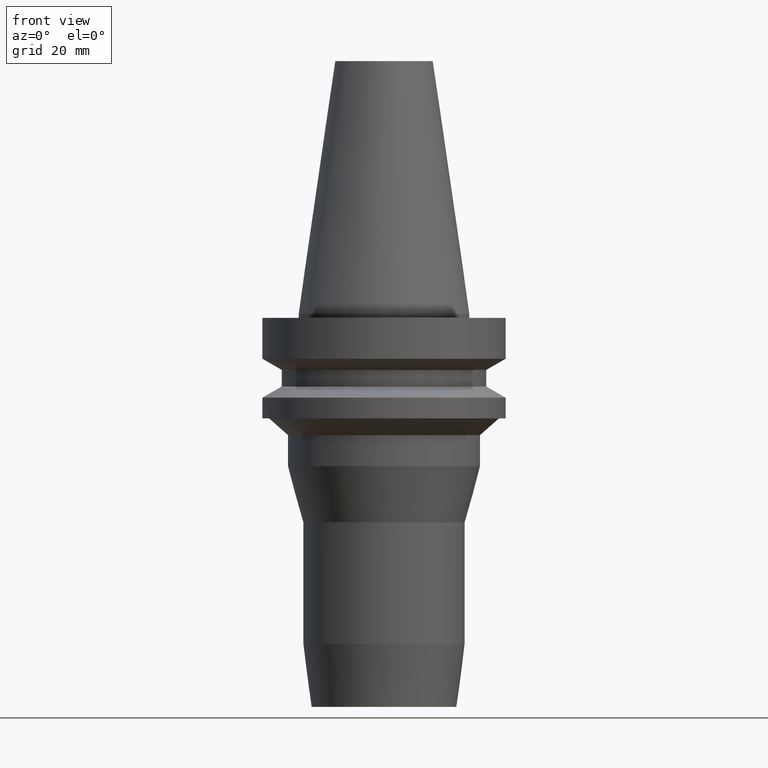
[diagram: clean part render]
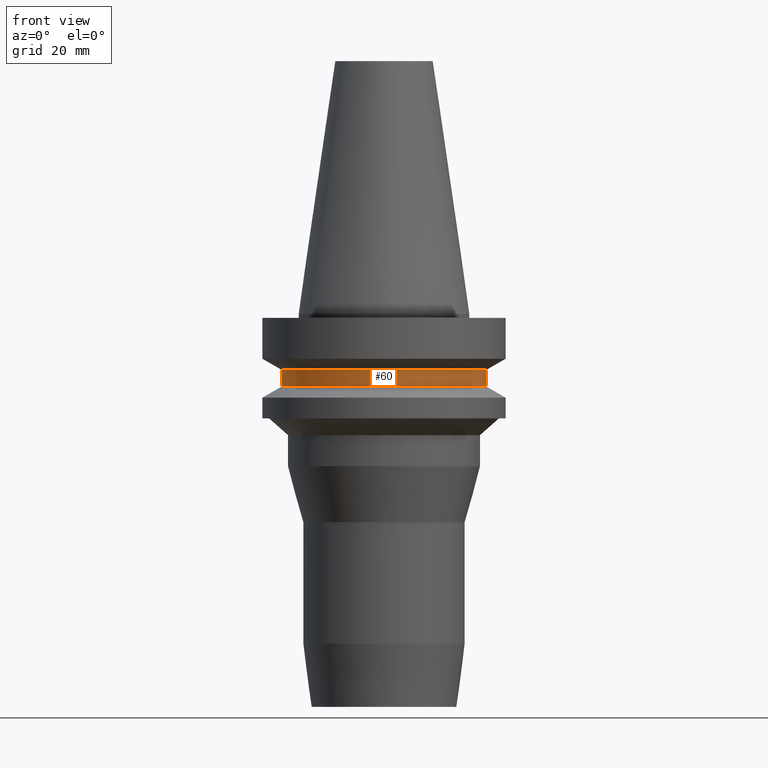
[diagram: same view with one face highlighted and labeled with its STEP entity id]
A machine part, front view. The second image highlights one B-rep face of the part: STEP entity #60.
In plain terms, the highlighted cylindrical surface (bore or boss wall) has radius 26.5 mm, axis along (0, -0, -1).
Its self-contained STEP definition (entity closure, byte-faithful):
#60=ADVANCED_FACE('Unnamed[1]',(#159,#160),#161,.T.);
#62=EDGE_CURVE('Unnamed[1]',#163,#163,#164,.T.);
#117=EDGE_CURVE('Unnamed[1]',#248,#248,#249,.T.);
#159=FACE_BOUND('',#293,.T.);
#160=FACE_BOUND('',#294,.T.);
#161=CYLINDRICAL_SURFACE('',#295,26.4999999999997);
#163=VERTEX_POINT('',#298);
#164=CIRCLE('',#299,26.5);
#248=VERTEX_POINT('',#404);
#249=CIRCLE('',#405,26.4999999999994);
#293=EDGE_LOOP('',(#449));
#294=EDGE_LOOP('',(#450));
#295=AXIS2_PLACEMENT_3D('',#451,#452,#453);
#298=CARTESIAN_POINT('',(1.1479681728942E-015,26.5,-18.7477430013855));
#299=AXIS2_PLACEMENT_3D('',#454,#455,#456);
#404=CARTESIAN_POINT('',(8.8494551369045E-016,26.4999999999995,-14.4522569986152));
#405=AXIS2_PLACEMENT_3D('',#547,#548,#549);
#449=ORIENTED_EDGE('',*,*,#62,.F.);
#450=ORIENTED_EDGE('',*,*,#117,.T.);
#451=CARTESIAN_POINT('',(1.01645684329232E-015,3.16860570349738E-014,-16.6000000000003));
#452=DIRECTION('',(6.12323399573677E-017,-5.47979376128735E-016,-1.0));
#453=DIRECTION('',(2.87269067179732E-032,1.0,-5.47979376128735E-016));
#454=CARTESIAN_POINT('',(1.1479681728942E-015,3.05091381649899E-014,-18.7477430013855));
#455=DIRECTION('',(6.12323399573677E-017,-5.47979376128729E-016,-1.0));
#456=DIRECTION('',(2.87269067179729E-032,1.0,-5.47979376128729E-016));
#547=CARTESIAN_POINT('',(8.84945513690449E-016,3.28629759049578E-014,-14.4522569986152));
#548=DIRECTION('',(6.12323399573677E-017,-5.47979376128741E-016,-1.0));
#549=DIRECTION('',(2.87269067179735E-032,1.0,-5.47979376128741E-016));